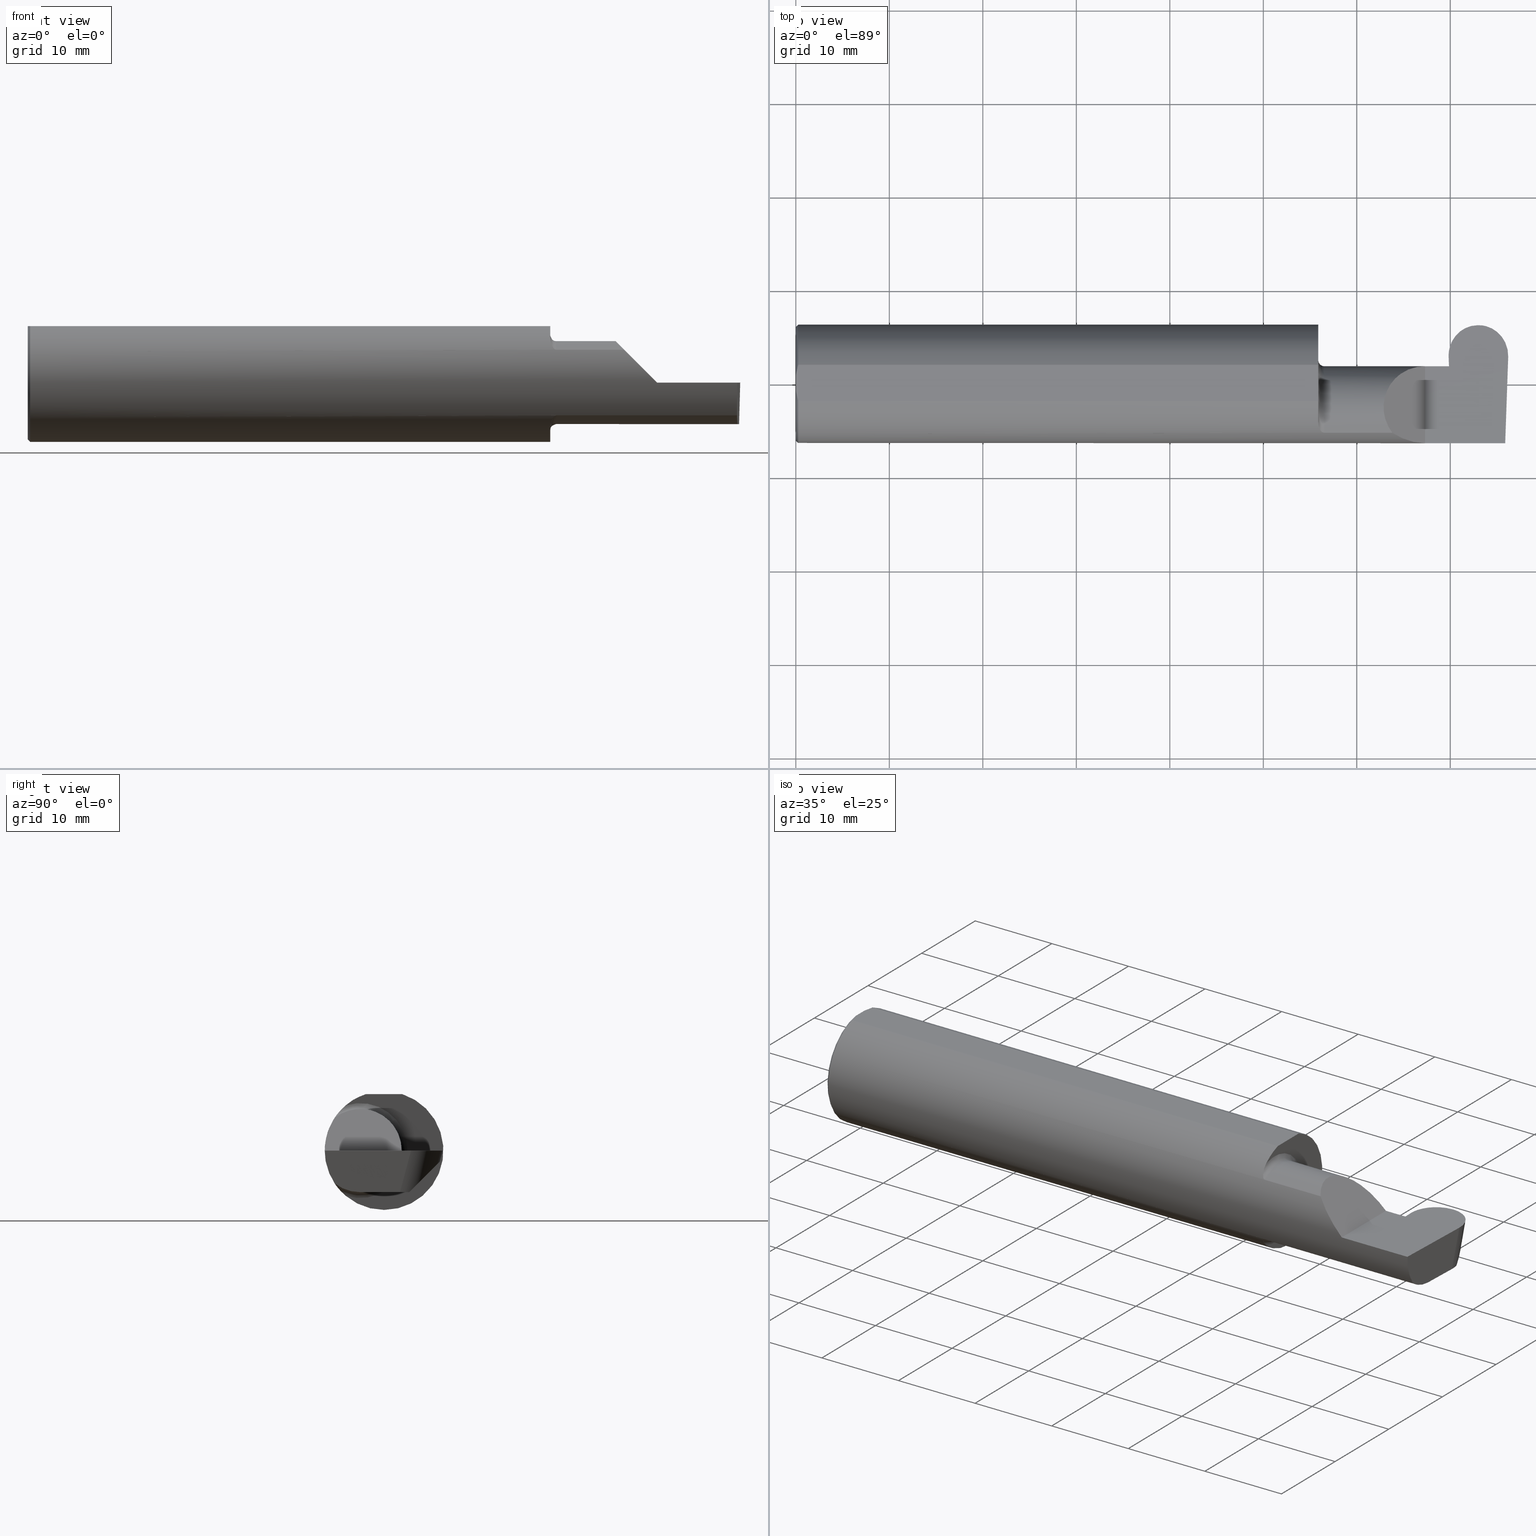
[diagram: canonical four-view strip — front | top / right | iso, engineering-drawing reading convention]
A machine part, canonical four-view strip (front | top / right | iso — engineering-drawing reading convention). The complete STEP part file that produces these views, byte-faithful:
ISO-10303-21;
HEADER;
FILE_DESCRIPTION (( 'STEP AP203' ),
    '1' );
FILE_NAME ('222518-GFR250-12.STEP',
    '2024-06-28T19:27:53',
    ( '' ),
    ( '' ),
    'SwSTEP 2.0',
    'SolidWorks 2024',
    '' );
FILE_SCHEMA (( 'CONFIG_CONTROL_DESIGN' ));
ENDSEC;

DATA;
#1 = CARTESIAN_POINT ( 'NONE',  ( 2.986150208451177512, -0.2080850024789288322, -0.1382955322609668858 ) ) ;
#2 = CC_DESIGN_PERSON_AND_ORGANIZATION_ASSIGNMENT ( #129, #199, ( #467 ) ) ;
#3 = AXIS2_PLACEMENT_3D ( 'NONE', #13, #597, #81 ) ;
#4 = ORIENTED_EDGE ( 'NONE', *, *, #671, .F. ) ;
#5 = ORGANIZATION ( 'UNSPECIFIED', 'UNSPECIFIED', '' ) ;
#6 = EDGE_CURVE ( 'NONE', #267, #198, #476, .T. ) ;
#7 = CARTESIAN_POINT ( 'NONE',  ( 0.002005502345409059580, 0.04647171987093979412, 0.2378499999999998671 ) ) ;
#8 = FACE_OUTER_BOUND ( 'NONE', #617, .T. ) ;
#9 = CARTESIAN_POINT ( 'NONE',  ( 2.753585465288466594, -0.1010545757111809412, -0.1750000000000000722 ) ) ;
#10 = ORIENTED_EDGE ( 'NONE', *, *, #624, .F. ) ;
#11 = CARTESIAN_POINT ( 'NONE',  ( 2.750367999175829414, 0.07414999999999984104, 0.000000000000000000 ) ) ;
#12 = CARTESIAN_POINT ( 'NONE',  ( 0.009999999999999856226, 0.000000000000000000, 0.000000000000000000 ) ) ;
#13 = CARTESIAN_POINT ( 'NONE',  ( 2.650000000000000355, -0.2500000000000000555, 4.286263797015729199E-17 ) ) ;
#14 = APPROVAL_STATUS ( 'not_yet_approved' ) ;
#15 = APPLICATION_CONTEXT ( 'configuration controlled 3d designs of mechanical parts and assemblies' ) ;
#16 = CARTESIAN_POINT ( 'NONE',  ( 2.990641147540828104, 0.1058243371481696476, -0.1750000000000001277 ) ) ;
#17 = EDGE_CURVE ( 'NONE', #699, #257, #646, .T. ) ;
#18 = CONICAL_SURFACE ( 'NONE', #506, 0.2398500000000001742, 0.7853981633974466137 ) ;
#19 = CC_DESIGN_APPROVAL ( #429, ( #251 ) ) ;
#20 = CARTESIAN_POINT ( 'NONE',  ( 3.002511784637379222, 0.1912804032740405558, -7.160714913043396685E-18 ) ) ;
#21 = B_SPLINE_CURVE_WITH_KNOTS ( 'NONE', 3,
 ( #477, #591, #88, #249 ),
 .UNSPECIFIED., .F., .F.,
 ( 4, 4 ),
 ( 0.01317593029100230795, 0.01435802289191462008 ),
 .UNSPECIFIED. ) ;
#22 = DIRECTION ( 'NONE',  ( 1.000000000000000000, -0.000000000000000000, -0.000000000000000000 ) ) ;
#23 = FACE_OUTER_BOUND ( 'NONE', #528, .T. ) ;
#24 = LINE ( 'NONE', #9, #178 ) ;
#25 = ORIENTED_EDGE ( 'NONE', *, *, #616, .F. ) ;
#26 = COORDINATED_UNIVERSAL_TIME_OFFSET ( 8, 0, .BEHIND. ) ;
#27 = EDGE_CURVE ( 'NONE', #128, #174, #24, .T. ) ;
#28 =( BOUNDED_CURVE ( )  B_SPLINE_CURVE ( 3, ( #637, #188, #231, #290 ),
 .UNSPECIFIED., .F., .T. ) 
 B_SPLINE_CURVE_WITH_KNOTS ( ( 4, 4 ),
 ( 4.955210089620395664, 4.975001206325426750 ),
 .UNSPECIFIED. ) 
 CURVE ( )  GEOMETRIC_REPRESENTATION_ITEM ( )  RATIONAL_B_SPLINE_CURVE ( ( 1.000000000000000000, 0.9999673595746501054, 0.9999673595746501054, 1.000000000000000000 ) ) 
 REPRESENTATION_ITEM ( '' )  );
#29 = CARTESIAN_POINT ( 'NONE',  ( 2.212579853086618531, -0.2024300470081733250, -0.1464774911482687736 ) ) ;
#30 = ORIENTED_EDGE ( 'NONE', *, *, #61, .F. ) ;
#31 = DATE_AND_TIME ( #84, #43 ) ;
#32 = EDGE_CURVE ( 'NONE', #258, #601, #229, .T. ) ;
#33 = CARTESIAN_POINT ( 'NONE',  ( -0.002039370078740339320, 0.2348243371481683328, -0.04599999999999999922 ) ) ;
#34 = ORIENTED_EDGE ( 'NONE', *, *, #270, .F. ) ;
#35 = DIRECTION ( 'NONE',  ( -0.02590004391968268177, -0.2587322210431824421, -0.9656017944882975268 ) ) ;
#36 = ORIENTED_EDGE ( 'NONE', *, *, #469, .T. ) ;
#37 = DIRECTION ( 'NONE',  ( -1.000000000000000000, -0.000000000000000000, -0.000000000000000000 ) ) ;
#38 = CC_DESIGN_PERSON_AND_ORGANIZATION_ASSIGNMENT ( #428, #135, ( #251 ) ) ;
#39 = CARTESIAN_POINT ( 'NONE',  ( 2.799820610884365735, 0.2471500000000000086, 2.591218986574985943E-17 ) ) ;
#40 = ORIENTED_EDGE ( 'NONE', *, *, #195, .T. ) ;
#41 = AXIS2_PLACEMENT_3D ( 'NONE', #55, #239, #574 ) ;
#42 = CARTESIAN_POINT ( 'NONE',  ( 2.200000000000000178, 0.07404339472834157998, -0.006107411922940012700 ) ) ;
#43 = LOCAL_TIME ( 12, 27, 53.00000000000000000, #594 ) ;
#44 = ORIENTED_EDGE ( 'NONE', *, *, #296, .F. ) ;
#45 = DIRECTION ( 'NONE',  ( 0.7071067811865486830, 0.000000000000000000, -0.7071067811865462405 ) ) ;
#46 = CARTESIAN_POINT ( 'NONE',  ( 2.753013396079577735, 0.1058243371481696476, -0.1750000000000001277 ) ) ;
#47 = ORIENTED_EDGE ( 'NONE', *, *, #657, .T. ) ;
#48 = EDGE_CURVE ( 'NONE', #295, #713, #474, .T. ) ;
#49 = CARTESIAN_POINT ( 'NONE',  ( 2.748789500000000441, 0.1196039745734777532, 3.076441347372056086E-17 ) ) ;
#50 = FACE_OUTER_BOUND ( 'NONE', #403, .T. ) ;
#51 = EDGE_LOOP ( 'NONE', ( #379, #569, #376 ) ) ;
#52 = DIRECTION ( 'NONE',  ( -1.000000000000000000, -2.177854163077307854E-16, -0.000000000000000000 ) ) ;
#53 = VECTOR ( 'NONE', #163, 39.37007874015748143 ) ;
#54 = ORIENTED_EDGE ( 'NONE', *, *, #745, .F. ) ;
#55 = CARTESIAN_POINT ( 'NONE',  ( 2.748789500000000441, 0.2498499999999999610, 0.000000000000000000 ) ) ;
#56 = EDGE_CURVE ( 'NONE', #509, #225, #710, .T. ) ;
#57 = VERTEX_POINT ( 'NONE', #126 ) ;
#58 =( CONVERSION_BASED_UNIT ( 'INCH', #122 ) LENGTH_UNIT ( ) NAMED_UNIT ( #609 ) );
#59 = CARTESIAN_POINT ( 'NONE',  ( 3.402190948718819552, -0.1008499999999995372, -0.1750000000000000722 ) ) ;
#60 = CC_DESIGN_PERSON_AND_ORGANIZATION_ASSIGNMENT ( #71, #132, ( #629 ) ) ;
#61 = EDGE_CURVE ( 'NONE', #561, #385, #587, .T. ) ;
#62 = ORIENTED_EDGE ( 'NONE', *, *, #400, .T. ) ;
#63 = APPROVAL_ROLE ( '' ) ;
#64 = FACE_OUTER_BOUND ( 'NONE', #187, .T. ) ;
#65 = CARTESIAN_POINT ( 'NONE',  ( 2.871989500000000195, 0.2471499999999999808, 4.554448608751558991E-18 ) ) ;
#66 = VECTOR ( 'NONE', #610, 39.37007874015748143 ) ;
#67 = CARTESIAN_POINT ( 'NONE',  ( 2.750367999175829414, 0.07414999999999984104, -4.822780832875165838E-21 ) ) ;
#68 = FACE_OUTER_BOUND ( 'NONE', #669, .T. ) ;
#69 = CARTESIAN_POINT ( 'NONE',  ( 2.200000000000000178, 0.2498499999999999333, 0.000000000000000000 ) ) ;
#70 = ORIENTED_EDGE ( 'NONE', *, *, #200, .F. ) ;
#71 = PERSON_AND_ORGANIZATION ( #272, #5 ) ;
#72 = ADVANCED_FACE ( 'NONE', ( #636 ), #353, .T. ) ;
#73 = DIRECTION ( 'NONE',  ( 0.9992386149554828290, 0.03489418134010756345, 0.01745240643728358798 ) ) ;
#74 = CARTESIAN_POINT ( 'NONE',  ( -0.002039370078740339320, 0.2471499999999999808, 0.000000000000000000 ) ) ;
#75 = PERSON_AND_ORGANIZATION ( #272, #5 ) ;
#76 = CARTESIAN_POINT ( 'NONE',  ( 0.000000000000000000, 0.000000000000000000, 0.000000000000000000 ) ) ;
#77 = ORIENTED_EDGE ( 'NONE', *, *, #127, .T. ) ;
#78 =( BOUNDED_CURVE ( )  B_SPLINE_CURVE ( 3, ( #426, #39, #269, #724 ),
 .UNSPECIFIED., .F., .T. ) 
 B_SPLINE_CURVE_WITH_KNOTS ( ( 4, 4 ),
 ( -8.881784197001252323E-16, 1.570796326794895892 ),
 .UNSPECIFIED. ) 
 CURVE ( )  GEOMETRIC_REPRESENTATION_ITEM ( )  RATIONAL_B_SPLINE_CURVE ( ( 1.000000000000000000, 0.8047378541243649375, 0.8047378541243649375, 1.000000000000000000 ) ) 
 REPRESENTATION_ITEM ( '' )  );
#79 = CARTESIAN_POINT ( 'NONE',  ( 2.995563461189592047, 0.07983311256960280711, -0.1750000000000001277 ) ) ;
#80 = EDGE_CURVE ( 'NONE', #207, #295, #369, .T. ) ;
#81 = DIRECTION ( 'NONE',  ( -0.7071067811865511255, 0.000000000000000000, 0.7071067811865439090 ) ) ;
#82 = PLANE ( 'NONE',  #604 ) ;
#83 = ORIENTED_EDGE ( 'NONE', *, *, #325, .F. ) ;
#84 = CALENDAR_DATE ( 2024, 28, 6 ) ;
#85 = DIRECTION ( 'NONE',  ( -1.000000000000000000, -0.000000000000000000, -0.000000000000000000 ) ) ;
#86 = ORIENTED_EDGE ( 'NONE', *, *, #325, .T. ) ;
#87 = AXIS2_PLACEMENT_3D ( 'NONE', #730, #675, #611 ) ;
#88 = CARTESIAN_POINT ( 'NONE',  ( 0.001983148254845701515, -0.04629825796642599717, 0.2378499999999998671 ) ) ;
#89 = ORIENTED_EDGE ( 'NONE', *, *, #317, .F. ) ;
#90 = CARTESIAN_POINT ( 'NONE',  ( 2.932279805067559586, 0.2348243371481688047, -0.04599999999999949962 ) ) ;
#91 = ADVANCED_FACE ( 'NONE', ( #417 ), #523, .F. ) ;
#92 = CYLINDRICAL_SURFACE ( 'NONE', #579, 0.1750000000000000444 ) ;
#93 = ORIENTED_EDGE ( 'NONE', *, *, #624, .T. ) ;
#94 = DIRECTION ( 'NONE',  ( -1.224646799147351975E-16, 0.000000000000000000, -1.000000000000000000 ) ) ;
#95 =( BOUNDED_CURVE ( )  B_SPLINE_CURVE ( 3, ( #375, #416, #79, #364 ),
 .UNSPECIFIED., .F., .T. ) 
 B_SPLINE_CURVE_WITH_KNOTS ( ( 4, 4 ),
 ( 4.339337998362998050, 4.645220385064936508 ),
 .UNSPECIFIED. ) 
 CURVE ( )  GEOMETRIC_REPRESENTATION_ITEM ( )  RATIONAL_B_SPLINE_CURVE ( ( 1.000000000000000000, 0.9922181835937360361, 0.9922181835937360361, 1.000000000000000000 ) ) 
 REPRESENTATION_ITEM ( '' )  );
#96 = CARTESIAN_POINT ( 'NONE',  ( 2.753585400763539415, -0.1008500000000000091, -0.1750000000000000444 ) ) ;
#97 = ORIENTED_EDGE ( 'NONE', *, *, #56, .F. ) ;
#98 = CARTESIAN_POINT ( 'NONE',  ( 0.000000000000000000, 0.2498499999999998500, 0.2378499999999998671 ) ) ;
#99 = AXIS2_PLACEMENT_3D ( 'NONE', #306, #526, #177 ) ;
#100 = CARTESIAN_POINT ( 'NONE',  ( 2.871989500000000195, 0.1283288039060777874, 0.03256150635663059012 ) ) ;
#101 = VECTOR ( 'NONE', #215, 39.37007874015748143 ) ;
#102 = EDGE_CURVE ( 'NONE', #382, #398, #595, .T. ) ;
#103 = ORIENTED_EDGE ( 'NONE', *, *, #111, .T. ) ;
#104 = CARTESIAN_POINT ( 'NONE',  ( 2.200000000000000178, -0.1008500000000001201, 0.000000000000000000 ) ) ;
#105 = PLANE ( 'NONE',  #676 ) ;
#106 = EDGE_LOOP ( 'NONE', ( #4, #632, #155, #34 ) ) ;
#107 = CARTESIAN_POINT ( 'NONE',  ( 2.739220100782099543, 0.07404339472834139957, -0.006107411922948775655 ) ) ;
#108 = DIRECTION ( 'NONE',  ( -1.000000000000000000, -2.177854163077307854E-16, -0.000000000000000000 ) ) ;
#109 = ORIENTED_EDGE ( 'NONE', *, *, #423, .F. ) ;
#110 = CARTESIAN_POINT ( 'NONE',  ( 0.009999999999999856226, 0.07650098038587520299, 0.2378499999999998671 ) ) ;
#111 = EDGE_CURVE ( 'NONE', #347, #257, #503, .T. ) ;
#112 = CARTESIAN_POINT ( 'NONE',  ( 2.871989500000000195, 0.2471499999999999808, 0.000000000000000000 ) ) ;
#113 = LOCAL_TIME ( 12, 27, 53.00000000000000000, #26 ) ;
#114 = ORIENTED_EDGE ( 'NONE', *, *, #512, .T. ) ;
#115 = CC_DESIGN_PERSON_AND_ORGANIZATION_ASSIGNMENT ( #235, #687, ( #454 ) ) ;
#116 = CARTESIAN_POINT ( 'NONE',  ( 2.990641147540828104, 0.1058243371481696476, -0.1750000000000001277 ) ) ;
#117 = LINE ( 'NONE', #634, #148 ) ;
#118 = VERTEX_POINT ( 'NONE', #640 ) ;
#119 = CARTESIAN_POINT ( 'NONE',  ( 0.000000000000000000, 0.03090954545120574992, 0.2378499999999998671 ) ) ;
#120 = DIRECTION ( 'NONE',  ( 0.000000000000000000, -1.000000000000000000, 1.223176342469858371E-16 ) ) ;
#121 = ORIENTED_EDGE ( 'NONE', *, *, #392, .T. ) ;
#122 = LENGTH_MEASURE_WITH_UNIT ( LENGTH_MEASURE( 0.02539999999999999897 ), #633 );
#123 = PLANE ( 'NONE',  #553 ) ;
#124 = CIRCLE ( 'NONE', #260, 0.2498499999999999888 ) ;
#125 = VECTOR ( 'NONE', #35, 39.37007874015748854 ) ;
#126 = CARTESIAN_POINT ( 'NONE',  ( 2.750478392166241903, 0.07404339472834139957, -0.006107411922948607387 ) ) ;
#127 = EDGE_CURVE ( 'NONE', #584, #435, #293, .T. ) ;
#128 = VERTEX_POINT ( 'NONE', #96 ) ;
#129 = PERSON_AND_ORGANIZATION ( #272, #5 ) ;
#130 = CARTESIAN_POINT ( 'NONE',  ( 2.225000000000000089, -0.1008500000000001201, 0.000000000000000000 ) ) ;
#131 = CARTESIAN_POINT ( 'NONE',  ( 2.212616400345756240, -0.2024684335577100480, 0.1464246884265642257 ) ) ;
#132 = PERSON_AND_ORGANIZATION_ROLE ( 'classification_officer' ) ;
#133 = CARTESIAN_POINT ( 'NONE',  ( 0.000000000000000000, 0.000000000000000000, 0.000000000000000000 ) ) ;
#134 = CARTESIAN_POINT ( 'NONE',  ( 2.986812263240209653, -0.1771157075472506448, -0.1623092683844333528 ) ) ;
#135 = PERSON_AND_ORGANIZATION_ROLE ( 'design_supplier' ) ;
#136 = CARTESIAN_POINT ( 'NONE',  ( 2.987107171508847081, -0.2498499999999999888, 0.000000000000000000 ) ) ;
#137 = EDGE_CURVE ( 'NONE', #57, #584, #446, .T. ) ;
#138 = CARTESIAN_POINT ( 'NONE',  ( 2.750000192667624077, 0.1208498554423467208, -0.07231247811393660962 ) ) ;
#139 = VECTOR ( 'NONE', #291, 39.37007874015748854 ) ;
#140 = ORIENTED_EDGE ( 'NONE', *, *, #80, .T. ) ;
#141 = DIRECTION ( 'NONE',  ( 0.000000000000000000, 0.000000000000000000, 1.000000000000000000 ) ) ;
#142 = EDGE_CURVE ( 'NONE', #174, #385, #615, .T. ) ;
#143 = SHAPE_DEFINITION_REPRESENTATION ( #566, #543 ) ;
#144 = CARTESIAN_POINT ( 'NONE',  ( 2.217611663768900065, -0.2061921161193827901, -0.1411075319999380573 ) ) ;
#145 = ORIENTED_EDGE ( 'NONE', *, *, #439, .F. ) ;
#146 = CARTESIAN_POINT ( 'NONE',  ( 2.214302603425052141, -0.2041009206016210775, -0.1441313430770043147 ) ) ;
#147 = ORIENTED_EDGE ( 'NONE', *, *, #455, .F. ) ;
#148 = VECTOR ( 'NONE', #697, 39.37007874015748143 ) ;
#149 = APPROVAL_PERSON_ORGANIZATION ( #181, #246, #63 ) ;
#150 = DIRECTION ( 'NONE',  ( 1.000000000000000000, -0.000000000000000000, -0.000000000000000000 ) ) ;
#151 = LINE ( 'NONE', #341, #577 ) ;
#152 = ORIENTED_EDGE ( 'NONE', *, *, #233, .T. ) ;
#153 = CARTESIAN_POINT ( 'NONE',  ( 2.873271171754832487, 0.2278691044638435637, -0.07195728175636369184 ) ) ;
#154 = DIRECTION ( 'NONE',  ( 0.9998367324388628408, 0.0003153570480505128921, 0.01806679318280336732 ) ) ;
#155 = ORIENTED_EDGE ( 'NONE', *, *, #735, .T. ) ;
#156 = DIRECTION ( 'NONE',  ( 1.000000000000000000, -0.000000000000000000, -0.000000000000000000 ) ) ;
#157 = DIRECTION ( 'NONE',  ( -9.742033668599594241E-17, 0.4473225909137139022, -0.8943726849911295407 ) ) ;
#158 = ADVANCED_FACE ( 'NONE', ( #607 ), #92, .T. ) ;
#159 = ORIENTED_EDGE ( 'NONE', *, *, #745, .T. ) ;
#160 = DIRECTION ( 'NONE',  ( 0.000000000000000000, 0.000000000000000000, 1.000000000000000000 ) ) ;
#161 = AXIS2_PLACEMENT_3D ( 'NONE', #100, #280, #619 ) ;
#162 = VECTOR ( 'NONE', #197, 39.37007874015748143 ) ;
#163 = DIRECTION ( 'NONE',  ( -2.177854163077307854E-16, 1.000000000000000000, 0.000000000000000000 ) ) ;
#164 = VECTOR ( 'NONE', #37, 39.37007874015748143 ) ;
#165 = ADVANCED_FACE ( 'NONE', ( #501 ), #497, .F. ) ;
#166 = ORIENTED_EDGE ( 'NONE', *, *, #480, .T. ) ;
#167 = DESIGN_CONTEXT ( 'detailed design', #15, 'design' ) ;
#168 = CARTESIAN_POINT ( 'NONE',  ( 3.402190948718819552, -0.1008499999999995372, -0.1750000000000000722 ) ) ;
#169 = CARTESIAN_POINT ( 'NONE',  ( 2.753531167726741113, 0.07109536363756174815, -0.1750000000000001277 ) ) ;
#170 = ORIENTED_EDGE ( 'NONE', *, *, #175, .F. ) ;
#171 = MANIFOLD_SOLID_BREP ( 'Fillet1', #703 ) ;
#172 = PLANE ( 'NONE',  #41 ) ;
#173 = CC_DESIGN_PERSON_AND_ORGANIZATION_ASSIGNMENT ( #415, #371, ( #251 ) ) ;
#174 = VERTEX_POINT ( 'NONE', #169 ) ;
#175 = EDGE_CURVE ( 'NONE', #623, #556, #549, .T. ) ;
#176 = PLANE ( 'NONE',  #486 ) ;
#177 = DIRECTION ( 'NONE',  ( 0.000000000000000000, 0.000000000000000000, -1.000000000000000000 ) ) ;
#178 = VECTOR ( 'NONE', #478, 39.37007874015748854 ) ;
#179 = VECTOR ( 'NONE', #535, 39.37007874015748143 ) ;
#180 = ORIENTED_EDGE ( 'NONE', *, *, #48, .T. ) ;
#181 = PERSON_AND_ORGANIZATION ( #272, #5 ) ;
#182 = CARTESIAN_POINT ( 'NONE',  ( 2.989756814851906697, -0.08644748268070674702, -0.1750000000000000722 ) ) ;
#183 = ORIENTED_EDGE ( 'NONE', *, *, #693, .T. ) ;
#184 = CARTESIAN_POINT ( 'NONE',  ( 2.999923484675441010, 0.1171611899918090643, 0.000000000000000000 ) ) ;
#185 = PLANE ( 'NONE',  #368 ) ;
#186 = ADVANCED_FACE ( 'NONE', ( #50 ), #284, .T. ) ;
#187 = EDGE_LOOP ( 'NONE', ( #461, #608, #77, #613 ) ) ;
#188 = CARTESIAN_POINT ( 'NONE',  ( 2.752599177285632415, 0.1041970330334760914, -0.1750000000000001277 ) ) ;
#189 = DIRECTION ( 'NONE',  ( 0.000000000000000000, 1.000000000000000000, 0.000000000000000000 ) ) ;
#190 = VECTOR ( 'NONE', #228, 39.37007874015748854 ) ;
#191 = CIRCLE ( 'NONE', #555, 0.2398500000000001742 ) ;
#192 = CARTESIAN_POINT ( 'NONE',  ( 2.214343523383979218, -0.2041337200786080275, 0.1440846171672516551 ) ) ;
#193 = CARTESIAN_POINT ( 'NONE',  ( 2.999793206199442785, 0.1134305025558126345, 0.000000000000000000 ) ) ;
#194 = CARTESIAN_POINT ( 'NONE',  ( 2.482823929317965472, 0.07414999999999993818, 0.1671760706820337172 ) ) ;
#195 = EDGE_CURVE ( 'NONE', #453, #561, #740, .T. ) ;
#196 = CARTESIAN_POINT ( 'NONE',  ( 2.739326706053758276, 0.07414999999999984104, 0.000000000000000000 ) ) ;
#197 = DIRECTION ( 'NONE',  ( -0.000000000000000000, 1.000000000000000000, -0.000000000000000000 ) ) ;
#198 = VERTEX_POINT ( 'NONE', #558 ) ;
#199 = PERSON_AND_ORGANIZATION_ROLE ( 'creator' ) ;
#200 = EDGE_CURVE ( 'NONE', #487, #207, #305, .T. ) ;
#201 = FACE_OUTER_BOUND ( 'NONE', #628, .T. ) ;
#202 = CARTESIAN_POINT ( 'NONE',  ( 2.987885367171879025, -0.1400387324517226584, -0.1750000000000001832 ) ) ;
#203 = VECTOR ( 'NONE', #581, 39.37007874015748143 ) ;
#204 = ORIENTED_EDGE ( 'NONE', *, *, #554, .F. ) ;
#205 = DATE_TIME_ROLE ( 'classification_date' ) ;
#206 = CARTESIAN_POINT ( 'NONE',  ( 2.225000000000000089, -0.2080850024789287489, -0.1382955322609671633 ) ) ;
#207 = VERTEX_POINT ( 'NONE', #449 ) ;
#208 = CALENDAR_DATE ( 2024, 28, 6 ) ;
#209 = CARTESIAN_POINT ( 'NONE',  ( 2.752279901668355677, 0.07056399972053570280, -0.1057442486376065083 ) ) ;
#210 = ADVANCED_FACE ( 'NONE', ( #388 ), #391, .T. ) ;
#211 = ORIENTED_EDGE ( 'NONE', *, *, #657, .F. ) ;
#212 = CARTESIAN_POINT ( 'NONE',  ( 0.000000000000000000, 0.07650098038587520299, 0.2378499999999998671 ) ) ;
#213 = ORIENTED_EDGE ( 'NONE', *, *, #721, .T. ) ;
#214 = VECTOR ( 'NONE', #464, 39.37007874015748854 ) ;
#215 = DIRECTION ( 'NONE',  ( -0.000000000000000000, 1.000000000000000000, -0.000000000000000000 ) ) ;
#216 = CARTESIAN_POINT ( 'NONE',  ( 2.754531504291869659, -2.688765469242836659, -0.1821862048796526190 ) ) ;
#217 = ORIENTED_EDGE ( 'NONE', *, *, #233, .F. ) ;
#218 = ADVANCED_FACE ( 'NONE', ( #395 ), #105, .F. ) ;
#219 = CARTESIAN_POINT ( 'NONE',  ( 2.200000000000000178, 0.07650098038587520299, 0.2378499999999998671 ) ) ;
#220 = DIRECTION ( 'NONE',  ( 0.000000000000000000, 0.9659258262890680902, -0.2588190451025210170 ) ) ;
#221 = B_SPLINE_CURVE_WITH_KNOTS ( 'NONE', 3,
 ( #119, #7, #696, #110 ),
 .UNSPECIFIED., .F., .F.,
 ( 4, 4 ),
 ( 0.01593449416844770414, 0.01712021724825603733 ),
 .UNSPECIFIED. ) ;
#222 = ORIENTED_EDGE ( 'NONE', *, *, #137, .F. ) ;
#223 = LINE ( 'NONE', #98, #101 ) ;
#224 = CARTESIAN_POINT ( 'NONE',  ( 2.739326706053758276, 0.07414999999999984104, 0.000000000000000000 ) ) ;
#225 = VERTEX_POINT ( 'NONE', #622 ) ;
#226 = CARTESIAN_POINT ( 'NONE',  ( -0.002039370078740339320, 0.1058243371481696476, -0.1750000000000001277 ) ) ;
#227 = VECTOR ( 'NONE', #321, 39.37007874015748143 ) ;
#228 = DIRECTION ( 'NONE',  ( -0.03489949670249486297, 0.9993908270190959842, -1.222058880457094394E-16 ) ) ;
#229 =( BOUNDED_CURVE ( )  B_SPLINE_CURVE ( 3, ( #588, #134, #202, #307 ),
 .UNSPECIFIED., .F., .F. ) 
 B_SPLINE_CURVE_WITH_KNOTS ( ( 4, 4 ),
 ( 0.4474640105399718126, 1.107026853503879860 ),
 .UNSPECIFIED. ) 
 CURVE ( )  GEOMETRIC_REPRESENTATION_ITEM ( )  RATIONAL_B_SPLINE_CURVE ( ( 1.000000000000000000, 0.9640754331822828371, 0.9640754331822828371, 1.000000000000000000 ) ) 
 REPRESENTATION_ITEM ( '' )  );
#230 = ORIENTED_EDGE ( 'NONE', *, *, #278, .F. ) ;
#231 = CARTESIAN_POINT ( 'NONE',  ( 2.752802398054977839, 0.1050117459796568176, -0.1750000000000001277 ) ) ;
#232 = CARTESIAN_POINT ( 'NONE',  ( 2.486894750000000265, -0.2080850024789289432, 0.1382955322609668858 ) ) ;
#233 = EDGE_CURVE ( 'NONE', #258, #542, #151, .T. ) ;
#234 = EDGE_LOOP ( 'NONE', ( #152, #366, #86, #103, #538, #524, #222, #289, #204, #673 ) ) ;
#235 = PERSON_AND_ORGANIZATION ( #272, #5 ) ;
#236 = DIRECTION ( 'NONE',  ( 0.000000000000000000, -1.000000000000000000, 0.000000000000000000 ) ) ;
#237 = ORIENTED_EDGE ( 'NONE', *, *, #27, .F. ) ;
#238 = APPLICATION_PROTOCOL_DEFINITION ( 'international standard', 'config_control_design', 1994, #15 ) ;
#239 = DIRECTION ( 'NONE',  ( -1.000000000000000000, -2.177854163077307854E-16, 0.000000000000000000 ) ) ;
#240 = CIRCLE ( 'NONE', #541, 0.1750000000000001277 ) ;
#241 = ORIENTED_EDGE ( 'NONE', *, *, #469, .F. ) ;
#242 = COORDINATED_UNIVERSAL_TIME_OFFSET ( 8, 0, .BEHIND. ) ;
#243 = EDGE_CURVE ( 'NONE', #295, #651, #78, .T. ) ;
#244 = CARTESIAN_POINT ( 'NONE',  ( 2.650000000000000355, -0.2498499999999999610, 4.286263797015729199E-17 ) ) ;
#245 = CARTESIAN_POINT ( 'NONE',  ( 2.748789500000000441, 0.1195161796598799009, -0.0003276550781932260296 ) ) ;
#246 = APPROVAL ( #573, 'UNSPECIFIED' ) ;
#247 = DIRECTION ( 'NONE',  ( 0.000000000000000000, -0.9998476951563912696, 0.01745240643728358451 ) ) ;
#248 = CARTESIAN_POINT ( 'NONE',  ( 0.009999999999999856226, 0.000000000000000000, 0.000000000000000000 ) ) ;
#249 = CARTESIAN_POINT ( 'NONE',  ( 0.000000000000000000, -0.03090954545120560767, 0.2378499999999998671 ) ) ;
#250 = VECTOR ( 'NONE', #414, 39.37007874015748854 ) ;
#251 = PRODUCT_DEFINITION_FORMATION_WITH_SPECIFIED_SOURCE ( 'ANY', '', #454, .NOT_KNOWN. ) ;
#252 = CARTESIAN_POINT ( 'NONE',  ( 2.409263745716142768, -0.07597241004310667511, 0.2407362542838552277 ) ) ;
#253 = CARTESIAN_POINT ( 'NONE',  ( 2.223318040126429196, -0.2080850024789288599, -0.1382955322609670523 ) ) ;
#254 = CARTESIAN_POINT ( 'NONE',  ( 2.200000000000000178, -0.1616050818046602389, 0.1905487340154982112 ) ) ;
#255 = ADVANCED_FACE ( 'NONE', ( #384 ), #508, .F. ) ;
#256 = CARTESIAN_POINT ( 'NONE',  ( 2.748789500000000441, 0.1158222753493550888, -0.01411349364336942150 ) ) ;
#257 = VERTEX_POINT ( 'NONE', #302 ) ;
#258 = VERTEX_POINT ( 'NONE', #1 ) ;
#259 = CARTESIAN_POINT ( 'NONE',  ( 0.000000000000000000, 0.000000000000000000, 0.000000000000000000 ) ) ;
#260 = AXIS2_PLACEMENT_3D ( 'NONE', #397, #514, #460 ) ;
#261 = VECTOR ( 'NONE', #451, 39.37007874015748143 ) ;
#262 = EDGE_LOOP ( 'NONE', ( #744, #304, #70, #336, #30, #145 ) ) ;
#263 = APPROVAL_ROLE ( '' ) ;
#264 =( GEOMETRIC_REPRESENTATION_CONTEXT ( 3 ) GLOBAL_UNCERTAINTY_ASSIGNED_CONTEXT ( ( #282 ) ) GLOBAL_UNIT_ASSIGNED_CONTEXT ( ( #58, #354, #286 ) ) REPRESENTATION_CONTEXT ( 'NONE', 'WORKASPACE' ) );
#265 = EDGE_LOOP ( 'NONE', ( #717, #292, #589 ) ) ;
#266 = CARTESIAN_POINT ( 'NONE',  ( 2.225000000000000089, -0.1008500000000001062, 0.000000000000000000 ) ) ;
#267 = VERTEX_POINT ( 'NONE', #626 ) ;
#268 = CARTESIAN_POINT ( 'NONE',  ( 2.748789500000000441, 0.1195161796598799009, -0.0003276550781932260296 ) ) ;
#269 = CARTESIAN_POINT ( 'NONE',  ( 2.748789500000000441, 0.1943187064415508591, 3.216169852589702048E-17 ) ) ;
#270 = EDGE_CURVE ( 'NONE', #398, #684, #310, .T. ) ;
#271 = ORIENTED_EDGE ( 'NONE', *, *, #278, .T. ) ;
#272 = PERSON ( 'UNSPECIFIED', 'UNSPECIFIED', 'UNSPECIFIED', ('UNSPECIFIED'), ('UNSPECIFIED'), ('UNSPECIFIED') ) ;
#273 = AXIS2_PLACEMENT_3D ( 'NONE', #248, #698, #527 ) ;
#274 = VECTOR ( 'NONE', #407, 39.37007874015748143 ) ;
#275 = CARTESIAN_POINT ( 'NONE',  ( 2.750367999175829414, 0.07414999999999984104, 0.000000000000000000 ) ) ;
#276 = DIRECTION ( 'NONE',  ( -1.000000000000000000, -2.177854163077307854E-16, -0.000000000000000000 ) ) ;
#277 = EDGE_LOOP ( 'NONE', ( #702, #121, #285, #686 ) ) ;
#278 = EDGE_CURVE ( 'NONE', #623, #267, #124, .T. ) ;
#279 = FACE_OUTER_BOUND ( 'NONE', #492, .T. ) ;
#280 = DIRECTION ( 'NONE',  ( -5.636701348602188489E-17, 0.2588190451025210170, 0.9659258262890683122 ) ) ;
#281 = ORIENTED_EDGE ( 'NONE', *, *, #576, .T. ) ;
#282 = UNCERTAINTY_MEASURE_WITH_UNIT (LENGTH_MEASURE( 1.000000000000000082E-05 ), #58, 'distance_accuracy_value', 'NONE');
#283 = CARTESIAN_POINT ( 'NONE',  ( 2.986150208451177512, -0.2080850024789288322, -0.1382955322609668858 ) ) ;
#284 = CYLINDRICAL_SURFACE ( 'NONE', #530, 0.1255000000000000004 ) ;
#285 = ORIENTED_EDGE ( 'NONE', *, *, #447, .T. ) ;
#286 =( NAMED_UNIT ( * ) SI_UNIT ( $, .STERADIAN. ) SOLID_ANGLE_UNIT ( ) );
#287 = AXIS2_PLACEMENT_3D ( 'NONE', #266, #680, #436 ) ;
#288 = ADVANCED_FACE ( 'NONE', ( #68 ), #294, .F. ) ;
#289 = ORIENTED_EDGE ( 'NONE', *, *, #480, .F. ) ;
#290 = CARTESIAN_POINT ( 'NONE',  ( 2.753013396079577735, 0.1058243371481696476, -0.1750000000000001277 ) ) ;
#291 = DIRECTION ( 'NONE',  ( -0.03489949670249542502, -0.9993908270190959842, 1.222058880457094394E-16 ) ) ;
#292 = ORIENTED_EDGE ( 'NONE', *, *, #439, .T. ) ;
#293 = B_SPLINE_CURVE_WITH_KNOTS ( 'NONE', 3,
 ( #560, #328, #494, #224 ),
 .UNSPECIFIED., .F., .F.,
 ( 4, 4 ),
 ( 0.000000000000000000, 1.000000000000000000 ),
 .UNSPECIFIED. ) ;
#294 = PLANE ( 'NONE',  #424 ) ;
#295 = VERTEX_POINT ( 'NONE', #112 ) ;
#296 = EDGE_CURVE ( 'NONE', #257, #435, #117, .T. ) ;
#297 = LINE ( 'NONE', #742, #677 ) ;
#298 = DIRECTION ( 'NONE',  ( -0.000000000000000000, 1.223176342469858371E-16, 1.000000000000000000 ) ) ;
#299 = VECTOR ( 'NONE', #394, 39.37007874015748143 ) ;
#300 = CARTESIAN_POINT ( 'NONE',  ( 2.201849548162864600, -0.1805300287242670443, 0.1728462070311782561 ) ) ;
#301 = ADVANCED_FACE ( 'NONE', ( #346 ), #18, .T. ) ;
#302 = CARTESIAN_POINT ( 'NONE',  ( 2.650000000000000355, 0.07414999999999999369, 9.797174393178813824E-17 ) ) ;
#303 = CARTESIAN_POINT ( 'NONE',  ( 2.225000000000000089, -0.2080850024789289432, 0.1382955322609670801 ) ) ;
#304 = ORIENTED_EDGE ( 'NONE', *, *, #80, .F. ) ;
#305 =( BOUNDED_CURVE ( )  B_SPLINE_CURVE ( 3, ( #46, #443, #663, #672 ),
 .UNSPECIFIED., .F., .T. ) 
 B_SPLINE_CURVE_WITH_KNOTS ( ( 4, 4 ),
 ( 4.975001206325426750, 6.283185307179586232 ),
 .UNSPECIFIED. ) 
 CURVE ( )  GEOMETRIC_REPRESENTATION_ITEM ( )  RATIONAL_B_SPLINE_CURVE ( ( 1.000000000000000000, 0.8624004580113926455, 0.8624004580113926455, 1.000000000000000000 ) ) 
 REPRESENTATION_ITEM ( '' )  );
#306 = CARTESIAN_POINT ( 'NONE',  ( 0.000000000000000000, 0.000000000000000000, 0.000000000000000000 ) ) ;
#307 = CARTESIAN_POINT ( 'NONE',  ( 2.989253867864499092, -0.1008499999999995372, -0.1750000000000000722 ) ) ;
#308 = LINE ( 'NONE', #256, #319 ) ;
#309 = ADVANCED_FACE ( 'NONE', ( #8 ), #344, .T. ) ;
#310 = CIRCLE ( 'NONE', #471, 0.2498499999999999888 ) ;
#311 = CC_DESIGN_SECURITY_CLASSIFICATION ( #629, ( #251 ) ) ;
#312 = CARTESIAN_POINT ( 'NONE',  ( 2.202968662030528435, -0.1849684355203375652, 0.1680843977756270868 ) ) ;
#313 = LINE ( 'NONE', #531, #179 ) ;
#314 = CARTESIAN_POINT ( 'NONE',  ( 2.221718393013767834, -0.2077830475237238683, 0.1387513848711940390 ) ) ;
#315 = LINE ( 'NONE', #33, #227 ) ;
#316 = ORIENTED_EDGE ( 'NONE', *, *, #612, .F. ) ;
#317 = EDGE_CURVE ( 'NONE', #342, #556, #627, .T. ) ;
#318 = CARTESIAN_POINT ( 'NONE',  ( 2.748866015324560319, 0.1171611899918090366, 0.000000000000000000 ) ) ;
#319 = VECTOR ( 'NONE', #537, 39.37007874015748854 ) ;
#320 = ORIENTED_EDGE ( 'NONE', *, *, #568, .F. ) ;
#321 = DIRECTION ( 'NONE',  ( 1.000000000000000000, -0.000000000000000000, -0.000000000000000000 ) ) ;
#322 = EDGE_LOOP ( 'NONE', ( #406, #170, #271, #550 ) ) ;
#323 = CARTESIAN_POINT ( 'NONE',  ( 3.000000000000000444, -0.2500000000000000555, 0.000000000000000000 ) ) ;
#324 = CARTESIAN_POINT ( 'NONE',  ( 2.760318370161228163, -0.1232646843588789676, -0.1750000000000000722 ) ) ;
#325 = EDGE_CURVE ( 'NONE', #198, #347, #685, .T. ) ;
#326 = ORIENTED_EDGE ( 'NONE', *, *, #616, .T. ) ;
#327 = CARTESIAN_POINT ( 'NONE',  ( 2.987107171508847081, -0.2498499999999999888, 0.000000000000000000 ) ) ;
#328 = CARTESIAN_POINT ( 'NONE',  ( 2.739255635872652750, 0.07407892981889421802, -0.004071607948632522886 ) ) ;
#329 = ADVANCED_FACE ( 'NONE', ( #571 ), #185, .F. ) ;
#330 =( BOUNDED_CURVE ( )  B_SPLINE_CURVE ( 3, ( #422, #653, #209, #434 ),
 .UNSPECIFIED., .F., .F. ) 
 B_SPLINE_CURVE_WITH_KNOTS ( ( 4, 4 ),
 ( 3.159045946109724223, 4.694935687864671969 ),
 .UNSPECIFIED. ) 
 CURVE ( )  GEOMETRIC_REPRESENTATION_ITEM ( )  RATIONAL_B_SPLINE_CURVE ( ( 1.000000000000000000, 0.8128932002257818201, 0.8128932002257818201, 1.000000000000000000 ) ) 
 REPRESENTATION_ITEM ( '' )  );
#331 = VERTEX_POINT ( 'NONE', #352 ) ;
#332 = VECTOR ( 'NONE', #430, 39.37007874015748143 ) ;
#333 = AXIS2_PLACEMENT_3D ( 'NONE', #621, #160, #491 ) ;
#334 = LINE ( 'NONE', #153, #125 ) ;
#335 = DIRECTION ( 'NONE',  ( -0.02590004391968268177, -0.2587322210431824976, -0.9656017944882975268 ) ) ;
#336 = ORIENTED_EDGE ( 'NONE', *, *, #693, .F. ) ;
#337 = LINE ( 'NONE', #168, #164 ) ;
#338 = CARTESIAN_POINT ( 'NONE',  ( 2.200000000000000178, 0.2498499999999996002, 0.2378499999999998671 ) ) ;
#339 = ORIENTED_EDGE ( 'NONE', *, *, #512, .F. ) ;
#340 = ADVANCED_FACE ( 'NONE', ( #567 ), #172, .T. ) ;
#341 = CARTESIAN_POINT ( 'NONE',  ( 2.486894750000000265, -0.2080850024789289432, -0.1382955322609668858 ) ) ;
#342 = VERTEX_POINT ( 'NONE', #522 ) ;
#343 = LINE ( 'NONE', #67, #261 ) ;
#344 = CONICAL_SURFACE ( 'NONE', #99, 0.2398500000000001742, 0.7853981633974466137 ) ;
#345 = APPROVAL_PERSON_ORGANIZATION ( #655, #429, #718 ) ;
#346 = FACE_OUTER_BOUND ( 'NONE', #106, .T. ) ;
#347 = VERTEX_POINT ( 'NONE', #456 ) ;
#348 = CARTESIAN_POINT ( 'NONE',  ( 2.875201260087795863, 0.2471499999999999808, 0.000000000000000000 ) ) ;
#349 = DIRECTION ( 'NONE',  ( 0.01806679408117533442, 0.000000000000000000, -0.9998367821557817559 ) ) ;
#350 = EDGE_CURVE ( 'NONE', #509, #601, #452, .T. ) ;
#351 = EDGE_LOOP ( 'NONE', ( #731, #457, #93, #513, #605, #374 ) ) ;
#352 = CARTESIAN_POINT ( 'NONE',  ( 0.000000000000000000, -0.03090954545120560767, 0.2378499999999998671 ) ) ;
#353 = PLANE ( 'NONE',  #652 ) ;
#354 =( NAMED_UNIT ( * ) PLANE_ANGLE_UNIT ( ) SI_UNIT ( $, .RADIAN. ) );
#355 = AXIS2_PLACEMENT_3D ( 'NONE', #216, #154, #349 ) ;
#356 = CARTESIAN_POINT ( 'NONE',  ( 2.750367999175829414, 0.07414999999999984104, 0.000000000000000000 ) ) ;
#357 = AXIS2_PLACEMENT_3D ( 'NONE', #642, #700, #625 ) ;
#358 = CARTESIAN_POINT ( 'NONE',  ( 2.200367168219774072, -0.1713400252854601069, 0.1819601557798507796 ) ) ;
#359 = APPROVAL_DATE_TIME ( #539, #429 ) ;
#360 = DIRECTION ( 'NONE',  ( -1.000000000000000000, -2.177854163077307854E-16, -0.000000000000000000 ) ) ;
#361 = CARTESIAN_POINT ( 'NONE',  ( 2.748789499999999997, 0.1262550149847270209, -0.01380122061147656849 ) ) ;
#362 = B_SPLINE_CURVE_WITH_KNOTS ( 'NONE', 3,
 ( #372, #253, #645, #481, #144, #146, #29, #598, #656, #660, #603, #540 ),
 .UNSPECIFIED., .F., .F.,
 ( 4, 2, 2, 2, 2, 4 ),
 ( 1.964491429042083594E-07, 0.0001260981470478290977, 0.0002519998449527540156, 0.0005038032407626177834, 0.001007410032382344452, 0.002014623615621801474 ),
 .UNSPECIFIED. ) ;
#363 = EDGE_CURVE ( 'NONE', #699, #347, #689, .T. ) ;
#364 = CARTESIAN_POINT ( 'NONE',  ( 2.995099234303557623, 0.06653939388036607394, -0.1750000000000001277 ) ) ;
#365 = ORIENTED_EDGE ( 'NONE', *, *, #243, .T. ) ;
#366 = ORIENTED_EDGE ( 'NONE', *, *, #392, .F. ) ;
#367 = CARTESIAN_POINT ( 'NONE',  ( 0.009999999999999856226, 0.000000000000000000, -0.2498499999999999888 ) ) ;
#368 = AXIS2_PLACEMENT_3D ( 'NONE', #59, #298, #120 ) ;
#369 = LINE ( 'NONE', #65, #214 ) ;
#370 = EDGE_LOOP ( 'NONE', ( #166, #316, #237 ) ) ;
#371 = PERSON_AND_ORGANIZATION_ROLE ( 'creator' ) ;
#372 = CARTESIAN_POINT ( 'NONE',  ( 2.225000000000000089, -0.2080850024789287489, -0.1382955322609671633 ) ) ;
#373 = ADVANCED_FACE ( 'NONE', ( #64 ), #123, .F. ) ;
#374 = ORIENTED_EDGE ( 'NONE', *, *, #499, .F. ) ;
#375 = CARTESIAN_POINT ( 'NONE',  ( 2.990641147540828104, 0.1058243371481696476, -0.1750000000000001277 ) ) ;
#376 = ORIENTED_EDGE ( 'NONE', *, *, #17, .T. ) ;
#377 = CARTESIAN_POINT ( 'NONE',  ( 2.753013396079577735, 0.1058243371481696476, -0.1750000000000001277 ) ) ;
#378 = VECTOR ( 'NONE', #22, 39.37007874015748143 ) ;
#379 = ORIENTED_EDGE ( 'NONE', *, *, #111, .F. ) ;
#380 = CARTESIAN_POINT ( 'NONE',  ( 2.989253867864499092, -0.1008499999999995372, -0.1750000000000000722 ) ) ;
#381 = CARTESIAN_POINT ( 'NONE',  ( 2.873271171754832487, 0.1066454132645655029, -0.03947549159599728769 ) ) ;
#382 = VERTEX_POINT ( 'NONE', #412 ) ;
#383 = LINE ( 'NONE', #212, #66 ) ;
#384 = FACE_OUTER_BOUND ( 'NONE', #370, .T. ) ;
#385 = VERTEX_POINT ( 'NONE', #643 ) ;
#386 =( BOUNDED_CURVE ( )  B_SPLINE_CURVE ( 3, ( #606, #90, #692, #116 ),
 .UNSPECIFIED., .F., .T. ) 
 B_SPLINE_CURVE_WITH_KNOTS ( ( 4, 4 ),
 ( 3.126640370658172241, 4.420746632591429304 ),
 .UNSPECIFIED. ) 
 CURVE ( )  GEOMETRIC_REPRESENTATION_ITEM ( )  RATIONAL_B_SPLINE_CURVE ( ( 1.000000000000000000, 0.8652424962921507756, 0.8652424962921507756, 1.000000000000000000 ) ) 
 REPRESENTATION_ITEM ( '' )  );
#387 = CARTESIAN_POINT ( 'NONE',  ( 2.986241469175252128, -0.2498499999999999610, -0.04956584089959703565 ) ) ;
#388 = FACE_OUTER_BOUND ( 'NONE', #262, .T. ) ;
#389 = ORIENTED_EDGE ( 'NONE', *, *, #142, .F. ) ;
#390 = CARTESIAN_POINT ( 'NONE',  ( 2.200000000000000178, -0.07650098038587527238, 0.2378499999999998671 ) ) ;
#391 = CYLINDRICAL_SURFACE ( 'NONE', #161, 0.1232000000000000178 ) ;
#392 = EDGE_CURVE ( 'NONE', #198, #542, #240, .T. ) ;
#393 = ORIENTED_EDGE ( 'NONE', *, *, #27, .T. ) ;
#394 = DIRECTION ( 'NONE',  ( -1.000000000000000000, -0.000000000000000000, -0.000000000000000000 ) ) ;
#395 = FACE_OUTER_BOUND ( 'NONE', #438, .T. ) ;
#396 = ORIENTED_EDGE ( 'NONE', *, *, #554, .T. ) ;
#397 = CARTESIAN_POINT ( 'NONE',  ( 2.200000000000000178, 0.000000000000000000, 0.000000000000000000 ) ) ;
#398 = VERTEX_POINT ( 'NONE', #367 ) ;
#399 = VECTOR ( 'NONE', #108, 39.37007874015748143 ) ;
#400 = EDGE_CURVE ( 'NONE', #207, #118, #315, .T. ) ;
#401 = LOCAL_TIME ( 12, 27, 53.00000000000000000, #242 ) ;
#402 = DIRECTION ( 'NONE',  ( 0.000000000000000000, 0.000000000000000000, -1.000000000000000000 ) ) ;
#403 = EDGE_LOOP ( 'NONE', ( #339, #97, #147, #691, #25 ) ) ;
#404 = APPLICATION_PROTOCOL_DEFINITION ( 'international standard', 'config_control_design', 1994, #682 ) ;
#405 = DIRECTION ( 'NONE',  ( 1.000000000000000000, 0.000000000000000000, 0.000000000000000000 ) ) ;
#406 = ORIENTED_EDGE ( 'NONE', *, *, #317, .T. ) ;
#407 = DIRECTION ( 'NONE',  ( -0.03489949670249543195, -0.9993908270190959842, 0.000000000000000000 ) ) ;
#408 = CARTESIAN_POINT ( 'NONE',  ( 2.600434159100402987, -0.2498499999999999610, 0.04956584089959713973 ) ) ;
#409 = CARTESIAN_POINT ( 'NONE',  ( 2.999818293584536999, 0.1136811166044124077, 0.0009353043624648335131 ) ) ;
#410 = DIRECTION ( 'NONE',  ( -0.9992386149554828290, 0.03489418134010812550, 0.01745240643728358798 ) ) ;
#411 = CIRCLE ( 'NONE', #737, 0.2398500000000001742 ) ;
#412 = CARTESIAN_POINT ( 'NONE',  ( 0.009999999999999856226, -0.07650098038587520299, 0.2378499999999998671 ) ) ;
#413 = TOROIDAL_SURFACE ( 'NONE', #287, 0.2000000000000000389, 0.02499999999999993894 ) ;
#414 = DIRECTION ( 'NONE',  ( 0.02590004391968268524, 0.2587322210431824976, 0.9656017944882975268 ) ) ;
#415 = PERSON_AND_ORGANIZATION ( #272, #5 ) ;
#416 = CARTESIAN_POINT ( 'NONE',  ( 2.994065777569717479, 0.09303079560524193936, -0.1750000000000001277 ) ) ;
#417 = FACE_OUTER_BOUND ( 'NONE', #51, .T. ) ;
#418 = CARTESIAN_POINT ( 'NONE',  ( 2.950455787437228139, 0.2471500000000003971, -7.856938782845208821E-19 ) ) ;
#419 = CARTESIAN_POINT ( 'NONE',  ( 2.206159563508734323, -0.1933019864360846496, 0.1584298865564834902 ) ) ;
#420 = ORIENTED_EDGE ( 'NONE', *, *, #142, .T. ) ;
#421 = COORDINATED_UNIVERSAL_TIME_OFFSET ( 8, 0, .BEHIND. ) ;
#422 = CARTESIAN_POINT ( 'NONE',  ( 2.753585400763539415, -0.1008500000000000091, -0.1750000000000000444 ) ) ;
#423 = EDGE_CURVE ( 'NONE', #722, #453, #600, .T. ) ;
#424 = AXIS2_PLACEMENT_3D ( 'NONE', #586, #73, #688 ) ;
#425 = LOCAL_TIME ( 12, 27, 53.00000000000000000, #590 ) ;
#426 = CARTESIAN_POINT ( 'NONE',  ( 2.871989500000000195, 0.2471499999999999808, 0.000000000000000000 ) ) ;
#427 = ORIENTED_EDGE ( 'NONE', *, *, #48, .F. ) ;
#428 = PERSON_AND_ORGANIZATION ( #272, #5 ) ;
#429 = APPROVAL ( #488, 'UNSPECIFIED' ) ;
#430 = DIRECTION ( 'NONE',  ( -0.03489949670249486990, 0.9993908270190959842, -0.000000000000000000 ) ) ;
#431 = ADVANCED_FACE ( 'NONE', ( #201 ), #709, .T. ) ;
#432 = ORIENTED_EDGE ( 'NONE', *, *, #602, .T. ) ;
#433 = APPROVAL_DATE_TIME ( #704, #544 ) ;
#434 = CARTESIAN_POINT ( 'NONE',  ( 2.750478392166241903, 0.07404339472834139957, -0.006107411922948607387 ) ) ;
#435 = VERTEX_POINT ( 'NONE', #196 ) ;
#436 = DIRECTION ( 'NONE',  ( 2.177854163077307608E-16, -1.000000000000000000, 0.000000000000000000 ) ) ;
#437 = APPROVAL_PERSON_ORGANIZATION ( #75, #544, #263 ) ;
#438 = EDGE_LOOP ( 'NONE', ( #448, #140, #180, #326 ) ) ;
#439 = EDGE_CURVE ( 'NONE', #651, #561, #308, .T. ) ;
#440 = LINE ( 'NONE', #667, #664 ) ;
#441 = ORIENTED_EDGE ( 'NONE', *, *, #666, .T. ) ;
#442 = DIRECTION ( 'NONE',  ( -0.01806954526206910883, 0.01744955702544859211, 0.9996844524616943506 ) ) ;
#443 = CARTESIAN_POINT ( 'NONE',  ( 2.768056554299977989, 0.1849635101964372530, -0.09586082695173156476 ) ) ;
#444 = VERTEX_POINT ( 'NONE', #16 ) ;
#445 = CARTESIAN_POINT ( 'NONE',  ( 0.000000000000000000, 0.000000000000000000, -0.2398500000000001742 ) ) ;
#446 = LINE ( 'NONE', #42, #399 ) ;
#447 = EDGE_CURVE ( 'NONE', #542, #342, #362, .T. ) ;
#448 = ORIENTED_EDGE ( 'NONE', *, *, #400, .F. ) ;
#449 = CARTESIAN_POINT ( 'NONE',  ( 2.871989500000000195, 0.2348243371481683328, -0.04599999999999999922 ) ) ;
#450 = ORIENTED_EDGE ( 'NONE', *, *, #350, .T. ) ;
#451 = DIRECTION ( 'NONE',  ( -0.01806954526206910883, 0.01744955702544859211, 0.9996844524616943506 ) ) ;
#452 = LINE ( 'NONE', #182, #139 ) ;
#453 = VERTEX_POINT ( 'NONE', #711 ) ;
#454 = PRODUCT ( '222518-GFR250-12', '222518-GFR250-12', '', ( #466 ) ) ;
#455 = EDGE_CURVE ( 'NONE', #444, #509, #95, .T. ) ;
#456 = CARTESIAN_POINT ( 'NONE',  ( 2.511704467739031887, -0.2080850024789288599, 0.1382955322609669968 ) ) ;
#457 = ORIENTED_EDGE ( 'NONE', *, *, #175, .T. ) ;
#458 = LINE ( 'NONE', #565, #274 ) ;
#459 = AXIS2_PLACEMENT_3D ( 'NONE', #323, #94, #729 ) ;
#460 = DIRECTION ( 'NONE',  ( 0.000000000000000000, 1.000000000000000000, 0.000000000000000000 ) ) ;
#461 = ORIENTED_EDGE ( 'NONE', *, *, #721, .F. ) ;
#462 = CALENDAR_DATE ( 2024, 28, 6 ) ;
#463 = DIRECTION ( 'NONE',  ( 1.000000000000000000, 0.000000000000000000, 0.000000000000000000 ) ) ;
#464 = DIRECTION ( 'NONE',  ( -5.636701348602187257E-17, 0.2588190451025209615, 0.9659258262890682012 ) ) ;
#465 = ORIENTED_EDGE ( 'NONE', *, *, #546, .T. ) ;
#466 = MECHANICAL_CONTEXT ( 'NONE', #682, 'mechanical' ) ;
#467 = PRODUCT_DEFINITION ( 'UNKNOWN', '', #251, #167 ) ;
#468 = DIRECTION ( 'NONE',  ( 1.000000000000000000, 2.177854163077307854E-16, 0.000000000000000000 ) ) ;
#469 = EDGE_CURVE ( 'NONE', #695, #331, #411, .T. ) ;
#470 = CARTESIAN_POINT ( 'NONE',  ( 2.511704467739031887, -0.2080850024789288599, 0.1382955322609669968 ) ) ;
#471 = AXIS2_PLACEMENT_3D ( 'NONE', #12, #405, #631 ) ;
#472 = DIRECTION ( 'NONE',  ( 0.000000000000000000, 0.000000000000000000, -1.000000000000000000 ) ) ;
#473 = VECTOR ( 'NONE', #45, 39.37007874015748854 ) ;
#474 = LINE ( 'NONE', #74, #378 ) ;
#475 = ORIENTED_EDGE ( 'NONE', *, *, #499, .T. ) ;
#476 = B_SPLINE_CURVE_WITH_KNOTS ( 'NONE', 3,
 ( #254, #519, #358, #300, #312, #419, #706, #131, #192, #593, #536, #314, #534, #303 ),
 .UNSPECIFIED., .F., .F.,
 ( 4, 2, 2, 2, 2, 2, 4 ),
 ( 0.0003834465838148119385, 0.0008781406165086554517, 0.001372834649202498911, 0.001867528681896342370, 0.002114875698243268761, 0.002238549206416739004, 0.002362222714590209247 ),
 .UNSPECIFIED. ) ;
#477 = CARTESIAN_POINT ( 'NONE',  ( 0.009999999999999856226, -0.07650098038587520299, 0.2378499999999998671 ) ) ;
#478 = DIRECTION ( 'NONE',  ( -0.0003154085283454350426, 0.9999999502587288980, -1.223178646569383192E-16 ) ) ;
#479 = DATE_TIME_ROLE ( 'creation_date' ) ;
#480 = EDGE_CURVE ( 'NONE', #128, #57, #330, .T. ) ;
#481 = CARTESIAN_POINT ( 'NONE',  ( 2.218863362722770294, -0.2068301641248767309, -0.1401678546132364422 ) ) ;
#482 = ORIENTED_EDGE ( 'NONE', *, *, #455, .T. ) ;
#483 = VERTEX_POINT ( 'NONE', #136 ) ;
#484 = SECURITY_CLASSIFICATION_LEVEL ( 'unclassified' ) ;
#485 = DIRECTION ( 'NONE',  ( 1.000000000000000000, 0.000000000000000000, 0.000000000000000000 ) ) ;
#486 = AXIS2_PLACEMENT_3D ( 'NONE', #184, #410, #510 ) ;
#487 = VERTEX_POINT ( 'NONE', #377 ) ;
#488 = APPROVAL_STATUS ( 'not_yet_approved' ) ;
#489 = DIRECTION ( 'NONE',  ( -1.000000000000000000, -0.000000000000000000, -0.000000000000000000 ) ) ;
#490 = ORIENTED_EDGE ( 'NONE', *, *, #270, .T. ) ;
#491 = DIRECTION ( 'NONE',  ( 1.000000000000000000, 0.000000000000000000, -0.000000000000000000 ) ) ;
#492 = EDGE_LOOP ( 'NONE', ( #427, #365, #659, #109, #320, #44, #620, #211, #54, #114 ) ) ;
#493 = DIRECTION ( 'NONE',  ( -1.000000000000000000, -0.000000000000000000, -0.000000000000000000 ) ) ;
#494 = CARTESIAN_POINT ( 'NONE',  ( 2.739291170963205069, 0.07411446490944703647, -0.002035803974316261009 ) ) ;
#495 = ORIENTED_EDGE ( 'NONE', *, *, #716, .F. ) ;
#496 = DIRECTION ( 'NONE',  ( -1.000000000000000000, -2.177854163077307854E-16, -0.000000000000000000 ) ) ;
#497 = PLANE ( 'NONE',  #87 ) ;
#498 = ORIENTED_EDGE ( 'NONE', *, *, #576, .F. ) ;
#499 = EDGE_CURVE ( 'NONE', #382, #331, #21, .T. ) ;
#500 = DIRECTION ( 'NONE',  ( 0.000000000000000000, -1.000000000000000000, 0.000000000000000000 ) ) ;
#501 = FACE_OUTER_BOUND ( 'NONE', #725, .T. ) ;
#502 = ORIENTED_EDGE ( 'NONE', *, *, #423, .T. ) ;
#503 =( BOUNDED_CURVE ( )  B_SPLINE_CURVE ( 3, ( #470, #252, #194, #681 ),
 .UNSPECIFIED., .F., .T. ) 
 B_SPLINE_CURVE_WITH_KNOTS ( ( 4, 4 ),
 ( 5.623622464215682903, 7.853981633974482790 ),
 .UNSPECIFIED. ) 
 CURVE ( )  GEOMETRIC_REPRESENTATION_ITEM ( )  RATIONAL_B_SPLINE_CURVE ( ( 1.000000000000000000, 0.6266774836124001657, 0.6266774836124001657, 1.000000000000000000 ) ) 
 REPRESENTATION_ITEM ( '' )  );
#504 = CARTESIAN_POINT ( 'NONE',  ( 0.000000000000000000, 0.03090954545120574992, 0.2378499999999998671 ) ) ;
#505 = DIRECTION ( 'NONE',  ( 0.000000000000000000, -0.9659258262890682012, 0.2588190451025209615 ) ) ;
#506 = AXIS2_PLACEMENT_3D ( 'NONE', #518, #463, #402 ) ;
#507 = ORIENTED_EDGE ( 'NONE', *, *, #56, .T. ) ;
#508 = PLANE ( 'NONE',  #355 ) ;
#509 = VERTEX_POINT ( 'NONE', #596 ) ;
#510 = DIRECTION ( 'NONE',  ( -0.03489949670249542502, -0.9993908270190959842, 0.000000000000000000 ) ) ;
#511 = PRODUCT_RELATED_PRODUCT_CATEGORY ( 'detail', '', ( #454 ) ) ;
#512 = EDGE_CURVE ( 'NONE', #225, #713, #658, .T. ) ;
#513 = ORIENTED_EDGE ( 'NONE', *, *, #735, .F. ) ;
#514 = DIRECTION ( 'NONE',  ( 1.000000000000000000, 2.177854163077307854E-16, 0.000000000000000000 ) ) ;
#515 = ORIENTED_EDGE ( 'NONE', *, *, #671, .T. ) ;
#516 = AXIS2_PLACEMENT_3D ( 'NONE', #694, #468, #189 ) ;
#517 = CIRCLE ( 'NONE', #580, 0.2000000000000000389 ) ;
#518 = CARTESIAN_POINT ( 'NONE',  ( 0.000000000000000000, 0.000000000000000000, 0.000000000000000000 ) ) ;
#519 = CARTESIAN_POINT ( 'NONE',  ( 2.200000000000000622, -0.1665641037263007607, 0.1863429692936364179 ) ) ;
#520 = ORIENTED_EDGE ( 'NONE', *, *, #61, .T. ) ;
#521 = EDGE_CURVE ( 'NONE', #453, #651, #313, .T. ) ;
#522 = CARTESIAN_POINT ( 'NONE',  ( 2.200000000000000178, -0.1616050818046602389, -0.1905487340154982112 ) ) ;
#523 = PLANE ( 'NONE',  #3 ) ;
#524 = ORIENTED_EDGE ( 'NONE', *, *, #127, .F. ) ;
#525 = APPROVAL_DATE_TIME ( #648, #246 ) ;
#526 = DIRECTION ( 'NONE',  ( 1.000000000000000000, 0.000000000000000000, 0.000000000000000000 ) ) ;
#527 = DIRECTION ( 'NONE',  ( 0.000000000000000000, 0.000000000000000000, -1.000000000000000000 ) ) ;
#528 = EDGE_LOOP ( 'NONE', ( #432, #465, #36 ) ) ;
#529 = CALENDAR_DATE ( 2024, 28, 6 ) ;
#530 = AXIS2_PLACEMENT_3D ( 'NONE', #381, #335, #220 ) ;
#531 = CARTESIAN_POINT ( 'NONE',  ( 2.748789500000000441, -0.2500000000000001110, 3.076441347372054853E-17 ) ) ;
#532 = CC_DESIGN_APPROVAL ( #544, ( #629 ) ) ;
#533 = ADVANCED_FACE ( 'NONE', ( #23 ), #82, .F. ) ;
#534 = CARTESIAN_POINT ( 'NONE',  ( 2.223329956043142097, -0.2080850024798588660, 0.1382955322595677827 ) ) ;
#535 = DIRECTION ( 'NONE',  ( -2.177854163077308101E-16, 1.000000000000000000, 2.667102129822360590E-32 ) ) ;
#536 = CARTESIAN_POINT ( 'NONE',  ( 2.218876997637615478, -0.2068363917296598409, 0.1401586554522233075 ) ) ;
#537 = DIRECTION ( 'NONE',  ( 5.636701348602187257E-17, -0.2588190451025209615, -0.9659258262890682012 ) ) ;
#538 = ORIENTED_EDGE ( 'NONE', *, *, #296, .T. ) ;
#539 = DATE_AND_TIME ( #529, #425 ) ;
#540 = CARTESIAN_POINT ( 'NONE',  ( 2.200000000000000178, -0.1616050818046602389, -0.1905487340154982112 ) ) ;
#541 = AXIS2_PLACEMENT_3D ( 'NONE', #130, #360, #236 ) ;
#542 = VERTEX_POINT ( 'NONE', #206 ) ;
#543 = ADVANCED_BREP_SHAPE_REPRESENTATION ( '222518-GFR250-12', ( #171, #357 ), #264 ) ;
#544 = APPROVAL ( #14, 'UNSPECIFIED' ) ;
#545 = CARTESIAN_POINT ( 'NONE',  ( 2.985913134503198840, -0.2355204011147991605, -0.09701513151466768792 ) ) ;
#546 = EDGE_CURVE ( 'NONE', #661, #695, #191, .T. ) ;
#547 = ORIENTED_EDGE ( 'NONE', *, *, #363, .T. ) ;
#548 = CARTESIAN_POINT ( 'NONE',  ( 0.009999999999999856226, 0.07650098038587520299, 0.2378499999999998671 ) ) ;
#549 = LINE ( 'NONE', #338, #53 ) ;
#550 = ORIENTED_EDGE ( 'NONE', *, *, #649, .T. ) ;
#551 = FACE_OUTER_BOUND ( 'NONE', #351, .T. ) ;
#552 = CARTESIAN_POINT ( 'NONE',  ( 2.748789500000000441, 0.1454645653348732859, -0.05220861937271910336 ) ) ;
#553 = AXIS2_PLACEMENT_3D ( 'NONE', #356, #247, #701 ) ;
#554 = EDGE_CURVE ( 'NONE', #601, #128, #337, .T. ) ;
#555 = AXIS2_PLACEMENT_3D ( 'NONE', #674, #493, #662 ) ;
#556 = VERTEX_POINT ( 'NONE', #219 ) ;
#557 = CARTESIAN_POINT ( 'NONE',  ( 4.499279347985562423E-32, -0.2498499999999999610, 3.673940397442054938E-16 ) ) ;
#558 = CARTESIAN_POINT ( 'NONE',  ( 2.225000000000000089, -0.2080850024789289432, 0.1382955322609670801 ) ) ;
#559 = ORIENTED_EDGE ( 'NONE', *, *, #612, .T. ) ;
#560 = CARTESIAN_POINT ( 'NONE',  ( 2.739220100782099543, 0.07404339472834139957, -0.006107411922948775655 ) ) ;
#561 = VERTEX_POINT ( 'NONE', #268 ) ;
#562 = DIRECTION ( 'NONE',  ( 0.000000000000000000, -1.000000000000000000, 0.000000000000000000 ) ) ;
#563 = EDGE_LOOP ( 'NONE', ( #665, #507, #159, #498, #719 ) ) ;
#564 = CC_DESIGN_APPROVAL ( #246, ( #467 ) ) ;
#565 = CARTESIAN_POINT ( 'NONE',  ( 2.999923484675441010, 0.1171611899918090643, 0.000000000000000000 ) ) ;
#566 = PRODUCT_DEFINITION_SHAPE ( 'NONE', 'NONE',  #467 ) ;
#567 = FACE_OUTER_BOUND ( 'NONE', #265, .T. ) ;
#568 = EDGE_CURVE ( 'NONE', #435, #722, #614, .T. ) ;
#569 = ORIENTED_EDGE ( 'NONE', *, *, #363, .F. ) ;
#570 = DIRECTION ( 'NONE',  ( 1.000000000000000000, 0.000000000000000000, 0.000000000000000000 ) ) ;
#571 = FACE_OUTER_BOUND ( 'NONE', #572, .T. ) ;
#572 = EDGE_LOOP ( 'NONE', ( #420, #183, #441, #482, #450, #396, #393 ) ) ;
#573 = APPROVAL_STATUS ( 'not_yet_approved' ) ;
#574 = DIRECTION ( 'NONE',  ( 2.177854163077307854E-16, -1.000000000000000000, 0.000000000000000000 ) ) ;
#575 = CARTESIAN_POINT ( 'NONE',  ( 2.650000000000000355, -0.2500000000000000555, 4.286263797015729199E-17 ) ) ;
#576 = EDGE_CURVE ( 'NONE', #258, #483, #733, .T. ) ;
#577 = VECTOR ( 'NONE', #52, 39.37007874015748143 ) ;
#578 = FACE_OUTER_BOUND ( 'NONE', #563, .T. ) ;
#579 = AXIS2_PLACEMENT_3D ( 'NONE', #727, #276, #562 ) ;
#580 = AXIS2_PLACEMENT_3D ( 'NONE', #104, #496, #500 ) ;
#581 = DIRECTION ( 'NONE',  ( 1.000000000000000000, 2.177854163077307854E-16, 0.000000000000000000 ) ) ;
#582 = CC_DESIGN_DATE_AND_TIME_ASSIGNMENT ( #31, #479, ( #467 ) ) ;
#583 = DIRECTION ( 'NONE',  ( -2.177854163077307854E-16, 1.000000000000000000, 0.000000000000000000 ) ) ;
#584 = VERTEX_POINT ( 'NONE', #107 ) ;
#585 = DATE_AND_TIME ( #208, #678 ) ;
#586 = CARTESIAN_POINT ( 'NONE',  ( 2.748866015324560319, 0.1171611899918090366, 0.000000000000000000 ) ) ;
#587 =( BOUNDED_CURVE ( )  B_SPLINE_CURVE ( 3, ( #245, #361, #138, #712 ),
 .UNSPECIFIED., .F., .F. ) 
 B_SPLINE_CURVE_WITH_KNOTS ( ( 4, 4 ),
 ( 0.02920211248569457019, 0.2720232217214049730 ),
 .UNSPECIFIED. ) 
 CURVE ( )  GEOMETRIC_REPRESENTATION_ITEM ( )  RATIONAL_B_SPLINE_CURVE ( ( 1.000000000000000000, 0.9950925250835043201, 0.9950925250835043201, 1.000000000000000000 ) ) 
 REPRESENTATION_ITEM ( '' )  );
#588 = CARTESIAN_POINT ( 'NONE',  ( 2.986150208451177512, -0.2080850024789288322, -0.1382955322609668858 ) ) ;
#589 = ORIENTED_EDGE ( 'NONE', *, *, #195, .F. ) ;
#590 = COORDINATED_UNIVERSAL_TIME_OFFSET ( 8, 0, .BEHIND. ) ;
#591 = CARTESIAN_POINT ( 'NONE',  ( 0.005459900170181723050, -0.06167314502012866823, 0.2378499999999998671 ) ) ;
#592 = ADVANCED_FACE ( 'NONE', ( #551 ), #723, .T. ) ;
#593 = CARTESIAN_POINT ( 'NONE',  ( 2.217647060162628581, -0.2062109266231179072, 0.1410799729252295298 ) ) ;
#594 = COORDINATED_UNIVERSAL_TIME_OFFSET ( 8, 0, .BEHIND. ) ;
#595 = CIRCLE ( 'NONE', #273, 0.2498499999999999888 ) ;
#596 = CARTESIAN_POINT ( 'NONE',  ( 2.995099234303557623, 0.06653939388036607394, -0.1750000000000001277 ) ) ;
#597 = DIRECTION ( 'NONE',  ( -0.7071067811865439090, 0.000000000000000000, -0.7071067811865511255 ) ) ;
#598 = CARTESIAN_POINT ( 'NONE',  ( 2.208176740666625282, -0.1972027065478071106, -0.1535263573771916690 ) ) ;
#599 = ORIENTED_EDGE ( 'NONE', *, *, #447, .F. ) ;
#600 = LINE ( 'NONE', #318, #332 ) ;
#601 = VERTEX_POINT ( 'NONE', #380 ) ;
#602 = EDGE_CURVE ( 'NONE', #331, #661, #223, .T. ) ;
#603 = CARTESIAN_POINT ( 'NONE',  ( 2.199999999999998845, -0.1716188362992552285, -0.1820560320165482138 ) ) ;
#604 = AXIS2_PLACEMENT_3D ( 'NONE', #259, #485, #715 ) ;
#605 = ORIENTED_EDGE ( 'NONE', *, *, #602, .F. ) ;
#606 = CARTESIAN_POINT ( 'NONE',  ( 2.873967416046591783, 0.2348243371481683328, -0.04599999999999999922 ) ) ;
#607 = FACE_OUTER_BOUND ( 'NONE', #234, .T. ) ;
#608 = ORIENTED_EDGE ( 'NONE', *, *, #137, .T. ) ;
#609 = DIMENSIONAL_EXPONENTS ( 1.000000000000000000, 0.000000000000000000, 0.000000000000000000, 0.000000000000000000, 0.000000000000000000, 0.000000000000000000, 0.000000000000000000 ) ;
#610 = DIRECTION ( 'NONE',  ( -1.000000000000000000, -0.000000000000000000, -0.000000000000000000 ) ) ;
#611 = DIRECTION ( 'NONE',  ( 0.000000000000000000, -0.7071067811865435759, -0.7071067811865514585 ) ) ;
#612 = EDGE_CURVE ( 'NONE', #174, #57, #440, .T. ) ;
#613 = ORIENTED_EDGE ( 'NONE', *, *, #568, .T. ) ;
#614 = LINE ( 'NONE', #275, #654 ) ;
#615 = LINE ( 'NONE', #324, #190 ) ;
#616 = EDGE_CURVE ( 'NONE', #713, #118, #334, .T. ) ;
#617 = EDGE_LOOP ( 'NONE', ( #241, #515, #708, #475 ) ) ;
#618 = PLANE ( 'NONE',  #459 ) ;
#619 = DIRECTION ( 'NONE',  ( 0.000000000000000000, -0.9659258262890683122, 0.2588190451025209615 ) ) ;
#620 = ORIENTED_EDGE ( 'NONE', *, *, #17, .F. ) ;
#621 = CARTESIAN_POINT ( 'NONE',  ( 3.501298404146671484, 0.2498499999999998500, 0.2378499999999998671 ) ) ;
#622 = CARTESIAN_POINT ( 'NONE',  ( 2.999793206199442785, 0.1134305025558126345, 0.000000000000000000 ) ) ;
#623 = VERTEX_POINT ( 'NONE', #390 ) ;
#624 = EDGE_CURVE ( 'NONE', #556, #684, #383, .T. ) ;
#625 = DIRECTION ( 'NONE',  ( 1.000000000000000000, 0.000000000000000000, 0.000000000000000000 ) ) ;
#626 = CARTESIAN_POINT ( 'NONE',  ( 2.200000000000000178, -0.1616050818046602389, 0.1905487340154982112 ) ) ;
#627 = CIRCLE ( 'NONE', #516, 0.2498499999999999888 ) ;
#628 = EDGE_LOOP ( 'NONE', ( #217, #281, #47, #547, #83, #741, #230, #495, #679, #490, #10, #89, #599 ) ) ;
#629 = SECURITY_CLASSIFICATION ( '', '', #484 ) ;
#630 = CARTESIAN_POINT ( 'NONE',  ( 0.000000000000000000, 0.000000000000000000, -0.2398500000000001742 ) ) ;
#631 = DIRECTION ( 'NONE',  ( 0.000000000000000000, 0.000000000000000000, -1.000000000000000000 ) ) ;
#632 = ORIENTED_EDGE ( 'NONE', *, *, #546, .F. ) ;
#633 =( LENGTH_UNIT ( ) NAMED_UNIT ( * ) SI_UNIT ( $, .METRE. ) );
#634 = CARTESIAN_POINT ( 'NONE',  ( 2.200000000000000178, 0.07414999999999989655, 9.797174393178813824E-17 ) ) ;
#635 = ADVANCED_FACE ( 'NONE', ( #279 ), #618, .F. ) ;
#636 = FACE_OUTER_BOUND ( 'NONE', #322, .T. ) ;
#637 = CARTESIAN_POINT ( 'NONE',  ( 2.752403753671178954, 0.1033802780873585708, -0.1750000000000001277 ) ) ;
#638 = CARTESIAN_POINT ( 'NONE',  ( 2.511704467739031887, -0.2080850024789288599, 0.1382955322609669968 ) ) ;
#639 = ADVANCED_FACE ( 'NONE', ( #720 ), #413, .F. ) ;
#640 = CARTESIAN_POINT ( 'NONE',  ( 2.873967416046591783, 0.2348243371481683328, -0.04599999999999999922 ) ) ;
#641 = ORIENTED_EDGE ( 'NONE', *, *, #683, .T. ) ;
#642 = CARTESIAN_POINT ( 'NONE',  ( 0.000000000000000000, 0.000000000000000000, 0.000000000000000000 ) ) ;
#643 = CARTESIAN_POINT ( 'NONE',  ( 2.752403753671178954, 0.1033802780873585708, -0.1750000000000001277 ) ) ;
#644 = DIRECTION ( 'NONE',  ( 1.000000000000000000, 2.177854163077307854E-16, 0.000000000000000000 ) ) ;
#645 = CARTESIAN_POINT ( 'NONE',  ( 2.221700027347578654, -0.2077785947292765112, -0.1387580622202829739 ) ) ;
#646 = LINE ( 'NONE', #575, #162 ) ;
#647 = CC_DESIGN_DATE_AND_TIME_ASSIGNMENT ( #585, #205, ( #629 ) ) ;
#648 = DATE_AND_TIME ( #462, #401 ) ;
#649 = EDGE_CURVE ( 'NONE', #267, #342, #517, .T. ) ;
#650 = CARTESIAN_POINT ( 'NONE',  ( 2.875201260087795863, 0.2471499999999999808, 0.000000000000000000 ) ) ;
#651 = VERTEX_POINT ( 'NONE', #49 ) ;
#652 = AXIS2_PLACEMENT_3D ( 'NONE', #69, #644, #583 ) ;
#653 = CARTESIAN_POINT ( 'NONE',  ( 2.753553955298210898, -0.001152430219569880584, -0.1750000000000000999 ) ) ;
#654 = VECTOR ( 'NONE', #156, 39.37007874015748143 ) ;
#655 = PERSON_AND_ORGANIZATION ( #272, #5 ) ;
#656 = CARTESIAN_POINT ( 'NONE',  ( 2.206147634408387681, -0.1932733126899458809, -0.1584637047788199637 ) ) ;
#657 = EDGE_CURVE ( 'NONE', #483, #699, #726, .T. ) ;
#658 =( BOUNDED_CURVE ( )  B_SPLINE_CURVE ( 3, ( #193, #20, #418, #650 ),
 .UNSPECIFIED., .F., .T. ) 
 B_SPLINE_CURVE_WITH_KNOTS ( ( 4, 4 ),
 ( 1.637964922114649058, 3.237953570749844356 ),
 .UNSPECIFIED. ) 
 CURVE ( )  GEOMETRIC_REPRESENTATION_ITEM ( )  RATIONAL_B_SPLINE_CURVE ( ( 1.000000000000000000, 0.7978071872141900833, 0.7978071872141900833, 1.000000000000000000 ) ) 
 REPRESENTATION_ITEM ( '' )  );
#659 = ORIENTED_EDGE ( 'NONE', *, *, #521, .F. ) ;
#660 = CARTESIAN_POINT ( 'NONE',  ( 2.201385488563270432, -0.1808287530430323642, -0.1728790649396289847 ) ) ;
#661 = VERTEX_POINT ( 'NONE', #504 ) ;
#662 = DIRECTION ( 'NONE',  ( 0.000000000000000000, 0.000000000000000000, -1.000000000000000000 ) ) ;
#663 = CARTESIAN_POINT ( 'NONE',  ( 2.814042964602051278, 0.2348243371481683606, -0.04599999999999999922 ) ) ;
#664 = VECTOR ( 'NONE', #442, 39.37007874015748143 ) ;
#665 = ORIENTED_EDGE ( 'NONE', *, *, #350, .F. ) ;
#666 = EDGE_CURVE ( 'NONE', #487, #444, #732, .T. ) ;
#667 = CARTESIAN_POINT ( 'NONE',  ( 2.750367999175829414, 0.07414999999999984104, -4.822780832875165838E-21 ) ) ;
#668 = CARTESIAN_POINT ( 'NONE',  ( -0.002039370078740339320, 0.2471499999999999808, 0.000000000000000000 ) ) ;
#669 = EDGE_LOOP ( 'NONE', ( #40, #520, #389, #559, #213, #502 ) ) ;
#670 = LINE ( 'NONE', #445, #473 ) ;
#671 = EDGE_CURVE ( 'NONE', #695, #398, #670, .T. ) ;
#672 = CARTESIAN_POINT ( 'NONE',  ( 2.871989500000000195, 0.2348243371481683328, -0.04599999999999999922 ) ) ;
#673 = ORIENTED_EDGE ( 'NONE', *, *, #32, .F. ) ;
#674 = CARTESIAN_POINT ( 'NONE',  ( 0.000000000000000000, 0.000000000000000000, 0.000000000000000000 ) ) ;
#675 = DIRECTION ( 'NONE',  ( 0.000000000000000000, -0.7071067811865514585, 0.7071067811865435759 ) ) ;
#676 = AXIS2_PLACEMENT_3D ( 'NONE', #668, #505, #734 ) ;
#677 = VECTOR ( 'NONE', #570, 39.37007874015748143 ) ;
#678 = LOCAL_TIME ( 12, 27, 53.00000000000000000, #421 ) ;
#679 = ORIENTED_EDGE ( 'NONE', *, *, #102, .T. ) ;
#680 = DIRECTION ( 'NONE',  ( -1.000000000000000000, -2.177854163077307854E-16, -0.000000000000000000 ) ) ;
#681 = CARTESIAN_POINT ( 'NONE',  ( 2.650000000000000355, 0.07414999999999999369, 9.797174393178813824E-17 ) ) ;
#682 = APPLICATION_CONTEXT ( 'configuration controlled 3d designs of mechanical parts and assemblies' ) ;
#683 = EDGE_CURVE ( 'NONE', #118, #444, #386, .T. ) ;
#684 = VERTEX_POINT ( 'NONE', #548 ) ;
#685 = LINE ( 'NONE', #232, #203 ) ;
#686 = ORIENTED_EDGE ( 'NONE', *, *, #649, .F. ) ;
#687 = PERSON_AND_ORGANIZATION_ROLE ( 'design_owner' ) ;
#688 = DIRECTION ( 'NONE',  ( -0.03489949670249486297, 0.9993908270190959842, 0.000000000000000000 ) ) ;
#689 =( BOUNDED_CURVE ( )  B_SPLINE_CURVE ( 3, ( #244, #408, #743, #638 ),
 .UNSPECIFIED., .F., .T. ) 
 B_SPLINE_CURVE_WITH_KNOTS ( ( 4, 4 ),
 ( 4.712388980384689674, 5.298966915116348986 ),
 .UNSPECIFIED. ) 
 CURVE ( )  GEOMETRIC_REPRESENTATION_ITEM ( )  RATIONAL_B_SPLINE_CURVE ( ( 1.000000000000000000, 0.9715321379117536349, 0.9715321379117536349, 1.000000000000000000 ) ) 
 REPRESENTATION_ITEM ( '' )  );
#690 = VECTOR ( 'NONE', #157, 39.37007874015748143 ) ;
#691 = ORIENTED_EDGE ( 'NONE', *, *, #683, .F. ) ;
#692 = CARTESIAN_POINT ( 'NONE',  ( 2.977228179653960805, 0.1851272866862821997, -0.09569705046188667352 ) ) ;
#693 = EDGE_CURVE ( 'NONE', #385, #487, #28, .T. ) ;
#694 = CARTESIAN_POINT ( 'NONE',  ( 2.200000000000000178, 0.000000000000000000, 0.000000000000000000 ) ) ;
#695 = VERTEX_POINT ( 'NONE', #630 ) ;
#696 = CARTESIAN_POINT ( 'NONE',  ( 0.005466242398876384675, 0.06169385855649840017, 0.2378499999999998671 ) ) ;
#697 = DIRECTION ( 'NONE',  ( 1.000000000000000000, 2.177854163077307854E-16, 0.000000000000000000 ) ) ;
#698 = DIRECTION ( 'NONE',  ( 1.000000000000000000, 0.000000000000000000, 0.000000000000000000 ) ) ;
#699 = VERTEX_POINT ( 'NONE', #739 ) ;
#700 = DIRECTION ( 'NONE',  ( 0.000000000000000000, 0.000000000000000000, 1.000000000000000000 ) ) ;
#701 = DIRECTION ( 'NONE',  ( 0.000000000000000000, -0.01745240643728358451, -0.9998476951563912696 ) ) ;
#702 = ORIENTED_EDGE ( 'NONE', *, *, #6, .T. ) ;
#703 = CLOSED_SHELL ( 'NONE', ( #309, #373, #340, #431, #91, #635, #592, #533, #301, #639, #158, #72, #329, #218, #165, #288, #707, #255, #186, #210 ) ) ;
#704 = DATE_AND_TIME ( #714, #113 ) ;
#705 = VECTOR ( 'NONE', #150, 39.37007874015748143 ) ;
#706 = CARTESIAN_POINT ( 'NONE',  ( 2.208182335268384033, -0.1972192205116129193, 0.1535061413537213149 ) ) ;
#707 = ADVANCED_FACE ( 'NONE', ( #578 ), #176, .F. ) ;
#708 = ORIENTED_EDGE ( 'NONE', *, *, #102, .F. ) ;
#709 = CYLINDRICAL_SURFACE ( 'NONE', #736, 0.2498499999999999888 ) ;
#710 = LINE ( 'NONE', #409, #250 ) ;
#711 = CARTESIAN_POINT ( 'NONE',  ( 2.748789500000000441, 0.1193523022059226196, 0.000000000000000000 ) ) ;
#712 = CARTESIAN_POINT ( 'NONE',  ( 2.752403753671178954, 0.1033802780873585708, -0.1750000000000001277 ) ) ;
#713 = VERTEX_POINT ( 'NONE', #348 ) ;
#714 = CALENDAR_DATE ( 2024, 28, 6 ) ;
#715 = DIRECTION ( 'NONE',  ( 0.000000000000000000, 0.000000000000000000, -1.000000000000000000 ) ) ;
#716 = EDGE_CURVE ( 'NONE', #382, #623, #297, .T. ) ;
#717 = ORIENTED_EDGE ( 'NONE', *, *, #521, .T. ) ;
#718 = APPROVAL_ROLE ( '' ) ;
#719 = ORIENTED_EDGE ( 'NONE', *, *, #32, .T. ) ;
#720 = FACE_OUTER_BOUND ( 'NONE', #277, .T. ) ;
#721 = EDGE_CURVE ( 'NONE', #57, #722, #343, .T. ) ;
#722 = VERTEX_POINT ( 'NONE', #11 ) ;
#723 = PLANE ( 'NONE',  #333 ) ;
#724 = CARTESIAN_POINT ( 'NONE',  ( 2.748789500000000441, 0.1196039745734777532, 3.076441347372056086E-17 ) ) ;
#725 = EDGE_LOOP ( 'NONE', ( #738, #728, #62, #641 ) ) ;
#726 = LINE ( 'NONE', #557, #299 ) ;
#727 = CARTESIAN_POINT ( 'NONE',  ( 2.200000000000000178, -0.1008500000000001201, 0.000000000000000000 ) ) ;
#728 = ORIENTED_EDGE ( 'NONE', *, *, #200, .T. ) ;
#729 = DIRECTION ( 'NONE',  ( -1.000000000000000000, 0.000000000000000000, 1.224646799147351975E-16 ) ) ;
#730 = CARTESIAN_POINT ( 'NONE',  ( -0.002039370078740339320, 0.2348243371481683328, -0.04599999999999999922 ) ) ;
#731 = ORIENTED_EDGE ( 'NONE', *, *, #716, .T. ) ;
#732 = LINE ( 'NONE', #226, #705 ) ;
#733 =( BOUNDED_CURVE ( )  B_SPLINE_CURVE ( 3, ( #283, #545, #387, #327 ),
 .UNSPECIFIED., .F., .T. ) 
 B_SPLINE_CURVE_WITH_KNOTS ( ( 4, 4 ),
 ( 6.160376845738950280, 6.746954780470608704 ),
 .UNSPECIFIED. ) 
 CURVE ( )  GEOMETRIC_REPRESENTATION_ITEM ( )  RATIONAL_B_SPLINE_CURVE ( ( 1.000000000000000000, 0.9715321379117538569, 0.9715321379117538569, 1.000000000000000000 ) ) 
 REPRESENTATION_ITEM ( '' )  );
#734 = DIRECTION ( 'NONE',  ( 0.000000000000000000, -0.2588190451025209615, -0.9659258262890682012 ) ) ;
#735 = EDGE_CURVE ( 'NONE', #661, #684, #221, .T. ) ;
#736 = AXIS2_PLACEMENT_3D ( 'NONE', #133, #85, #141 ) ;
#737 = AXIS2_PLACEMENT_3D ( 'NONE', #76, #489, #472 ) ;
#738 = ORIENTED_EDGE ( 'NONE', *, *, #666, .F. ) ;
#739 = CARTESIAN_POINT ( 'NONE',  ( 2.650000000000000355, -0.2498499999999999610, 4.286263797015729199E-17 ) ) ;
#740 = LINE ( 'NONE', #552, #690 ) ;
#741 = ORIENTED_EDGE ( 'NONE', *, *, #6, .F. ) ;
#742 = CARTESIAN_POINT ( 'NONE',  ( 0.000000000000000000, -0.07650098038587520299, 0.2378499999999998671 ) ) ;
#743 = CARTESIAN_POINT ( 'NONE',  ( 2.552984868485331571, -0.2355204011147991605, 0.09701513151466779894 ) ) ;
#744 = ORIENTED_EDGE ( 'NONE', *, *, #243, .F. ) ;
#745 = EDGE_CURVE ( 'NONE', #225, #483, #458, .T. ) ;
ENDSEC;
END-ISO-10303-21;
